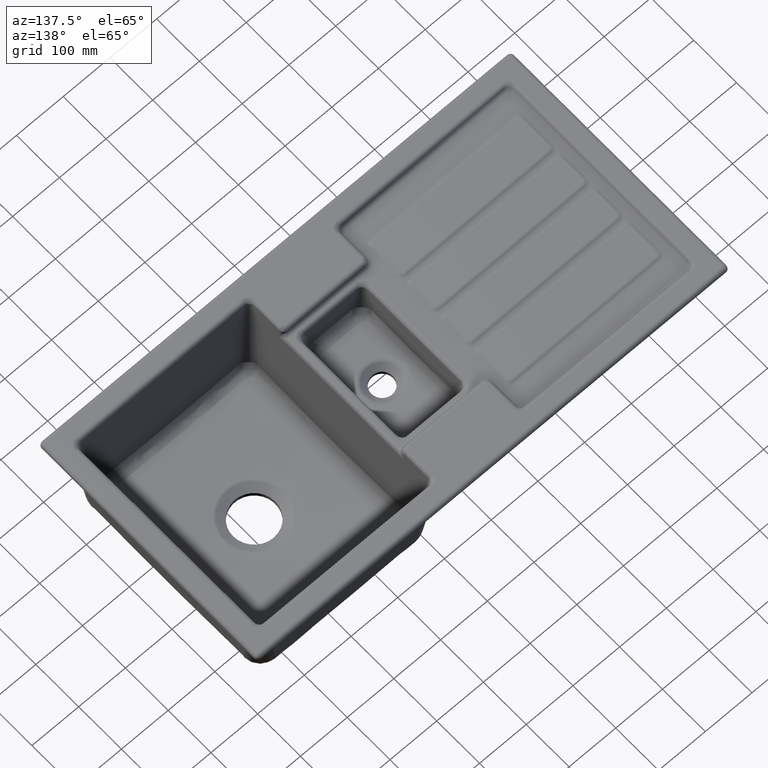
[diagram: clean part render]
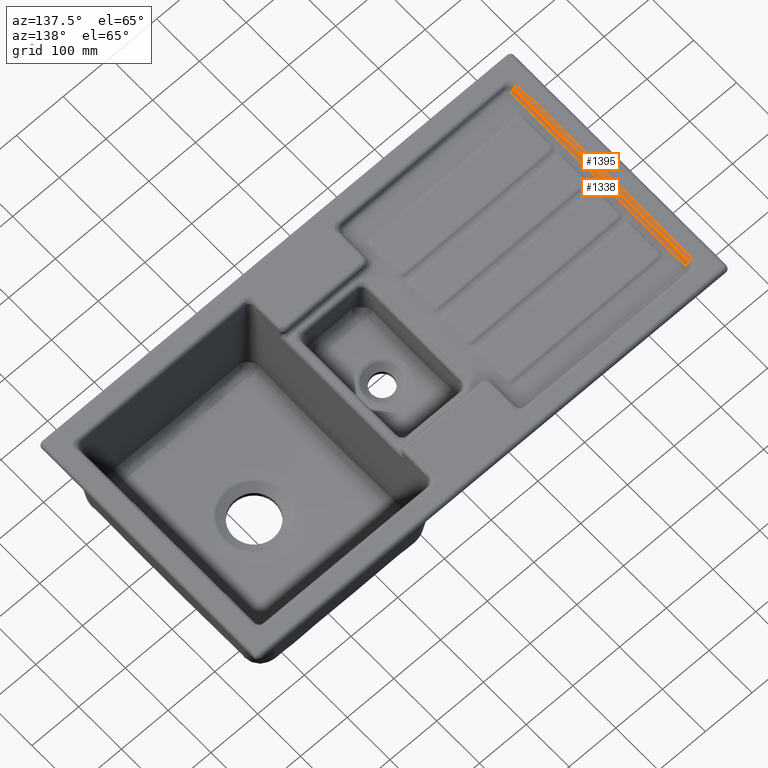
[diagram: same view with one multi-face feature highlighted, each face labeled with its STEP entity id]
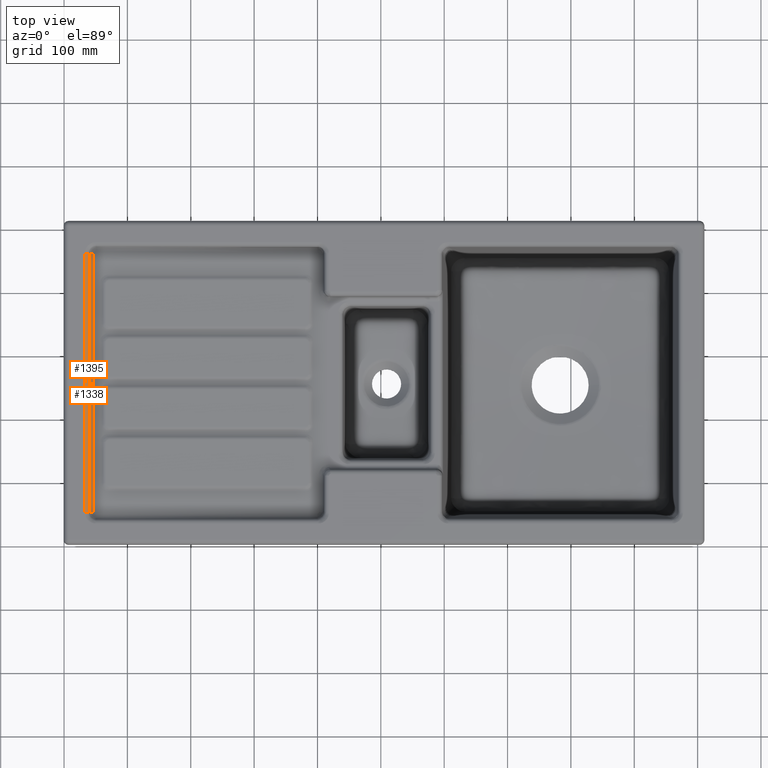
[diagram: same view with one multi-face feature highlighted, each face labeled with its STEP entity id]
A machine part, auxiliary view. The highlighted faces form ONE feature: a constant-radius fillet chain: 2 tangent blend faces with common blend radius 8 mm. The faces share edges in the B-rep.
A second angle (top view) of the same feature is appended — it is thin or edge-on in the first view.
Their STEP definitions:
[1] entity #1338 (Cylinder):
#563=FACE_OUTER_BOUND('',#1982,.T.);
#895=(
BOUNDED_CURVE()
B_SPLINE_CURVE(2,(#18164,#18165,#18166),.UNSPECIFIED.,.F.,.F.)
B_SPLINE_CURVE_WITH_KNOTS((3,3),(0.,1.),.UNSPECIFIED.)
CURVE()
GEOMETRIC_REPRESENTATION_ITEM()
RATIONAL_B_SPLINE_CURVE((1.,0.850855640641045,1.))
REPRESENTATION_ITEM('')
);
#1338=ADVANCED_FACE('',(#563),#1539,.F.);
#1539=CYLINDRICAL_SURFACE('',#6459,8.);
#1982=EDGE_LOOP('',(#3563,#3564,#3565,#3566));
#3563=ORIENTED_EDGE('',*,*,#5408,.F.);
#3564=ORIENTED_EDGE('',*,*,#5409,.T.);
#3565=ORIENTED_EDGE('',*,*,#5410,.T.);
#3566=ORIENTED_EDGE('',*,*,#5274,.F.);
#4449=VERTEX_POINT('',#15631);
#4450=VERTEX_POINT('',#15636);
#4521=VERTEX_POINT('',#18163);
#4522=VERTEX_POINT('',#18195);
#5274=EDGE_CURVE('',#4449,#4450,#6037,.T.);
#5408=EDGE_CURVE('',#4521,#4449,#895,.T.);
#5409=EDGE_CURVE('',#4521,#4522,#6151,.T.);
#5410=EDGE_CURVE('',#4522,#4450,#6152,.T.);
#6037=B_SPLINE_CURVE_WITH_KNOTS('',3,(#15632,#15633,#15634,#15635),
 .UNSPECIFIED.,.F.,.F.,(4,4),(0.,1.),.UNSPECIFIED.);
#6151=B_SPLINE_CURVE_WITH_KNOTS('',3,(#18191,#18192,#18193,#18194),
 .UNSPECIFIED.,.F.,.F.,(4,4),(0.,1.),.UNSPECIFIED.);
#6152=B_SPLINE_CURVE_WITH_KNOTS('',3,(#18196,#18197,#18198,#18199,#18200,
#18201),.UNSPECIFIED.,.F.,.F.,(4,2,4),(0.,0.5,1.),.UNSPECIFIED.);
#6459=AXIS2_PLACEMENT_3D('',#18202,#6834,#6835);
#6834=DIRECTION('',(-1.93643550806713E-16,1.,0.));
#6835=DIRECTION('',(1.,0.,0.));
#15631=CARTESIAN_POINT('',(46.9520135172106,459.399144826488,-9.15776325645886));
#15632=CARTESIAN_POINT('',(46.9520135172106,459.399144826488,-9.15776325645883));
#15633=CARTESIAN_POINT('',(46.9520135172106,323.133048275496,-9.15776325645883));
#15634=CARTESIAN_POINT('',(46.9520135172106,186.866951724504,-9.15776325645883));
#15635=CARTESIAN_POINT('',(46.9520135172106,50.6008551735119,-9.15776325645883));
#15636=CARTESIAN_POINT('',(46.9520135172107,50.6008551735119,-9.15776325645886));
#18163=CARTESIAN_POINT('',(39.9014313968267,459.399144826488,-4.57991119093864));
#18164=CARTESIAN_POINT('',(39.9014313968267,459.399144826488,-4.57991119093864));
#18165=CARTESIAN_POINT('',(42.0133208975027,459.399144826488,-9.04568864262136));
#18166=CARTESIAN_POINT('',(46.9520135172106,459.399144826488,-9.15776325645887));
#18191=CARTESIAN_POINT('',(39.9014313968267,459.399144826488,-4.57991119093862));
#18192=CARTESIAN_POINT('',(39.9014313968268,323.133048275496,-4.57991119093862));
#18193=CARTESIAN_POINT('',(39.9014313968268,186.866951724504,-4.57991119093862));
#18194=CARTESIAN_POINT('',(39.9014313968268,50.6008551735119,-4.57991119093862));
#18195=CARTESIAN_POINT('',(39.9014313968268,50.6008551735119,-4.57991119093864));
#18196=CARTESIAN_POINT('',(39.9014313968268,50.6008551735119,-4.57991119093865));
#18197=CARTESIAN_POINT('',(40.5320782416546,50.6008551735119,-5.91346981638048));
#18198=CARTESIAN_POINT('',(41.5397280307083,50.6008551735119,-7.06623185605915));
#18199=CARTESIAN_POINT('',(44.0142090632721,50.6008551735119,-8.67288048628544));
#18200=CARTESIAN_POINT('',(45.4772342178223,50.6008551735119,-9.12429583234445));
#18201=CARTESIAN_POINT('',(46.9520135172107,50.6008551735119,-9.15776325645888));
#18202=CARTESIAN_POINT('',(47.1335121857929,392.,-1.15982238187729));
[2] entity #1395 (Cylinder):
#620=FACE_OUTER_BOUND('',#2039,.T.);
#938=(
BOUNDED_CURVE()
B_SPLINE_CURVE(2,(#20072,#20073,#20074),.UNSPECIFIED.,.F.,.F.)
B_SPLINE_CURVE_WITH_KNOTS((3,3),(0.,1.),.UNSPECIFIED.)
CURVE()
GEOMETRIC_REPRESENTATION_ITEM()
RATIONAL_B_SPLINE_CURVE((1.,0.802395633807191,0.902043777651868))
REPRESENTATION_ITEM('')
);
#1395=ADVANCED_FACE('',(#620),#1560,.T.);
#1560=CYLINDRICAL_SURFACE('',#6484,8.);
#2039=EDGE_LOOP('',(#3800,#3801,#3802,#3803));
#3800=ORIENTED_EDGE('',*,*,#5519,.T.);
#3801=ORIENTED_EDGE('',*,*,#5409,.F.);
#3802=ORIENTED_EDGE('',*,*,#5517,.F.);
#3803=ORIENTED_EDGE('',*,*,#5520,.T.);
#4521=VERTEX_POINT('',#18163);
#4522=VERTEX_POINT('',#18195);
#4574=VERTEX_POINT('',#20075);
#4575=VERTEX_POINT('',#20122);
#5409=EDGE_CURVE('',#4521,#4522,#6151,.T.);
#5517=EDGE_CURVE('',#4574,#4521,#938,.T.);
#5519=EDGE_CURVE('',#4575,#4522,#6217,.T.);
#5520=EDGE_CURVE('',#4574,#4575,#6218,.T.);
#6151=B_SPLINE_CURVE_WITH_KNOTS('',3,(#18191,#18192,#18193,#18194),
 .UNSPECIFIED.,.F.,.F.,(4,4),(0.,1.),.UNSPECIFIED.);
#6217=B_SPLINE_CURVE_WITH_KNOTS('',3,(#20116,#20117,#20118,#20119,#20120,
#20121),.UNSPECIFIED.,.F.,.F.,(4,2,4),(0.,0.5,1.),.UNSPECIFIED.);
#6218=B_SPLINE_CURVE_WITH_KNOTS('',3,(#20123,#20124,#20125,#20126),
 .UNSPECIFIED.,.F.,.F.,(4,4),(0.,1.),.UNSPECIFIED.);
#6484=AXIS2_PLACEMENT_3D('',#20127,#6884,#6885);
#6884=DIRECTION('',(-1.93643550806713E-16,1.,0.));
#6885=DIRECTION('',(1.,0.,0.));
#18163=CARTESIAN_POINT('',(39.9014313968267,459.399144826488,-4.57991119093864));
#18191=CARTESIAN_POINT('',(39.9014313968267,459.399144826488,-4.57991119093862));
#18192=CARTESIAN_POINT('',(39.9014313968268,323.133048275496,-4.57991119093862));
#18193=CARTESIAN_POINT('',(39.9014313968268,186.866951724504,-4.57991119093862));
#18194=CARTESIAN_POINT('',(39.9014313968268,50.6008551735119,-4.57991119093862));
#18195=CARTESIAN_POINT('',(39.9014313968268,50.6008551735119,-4.57991119093864));
#20072=CARTESIAN_POINT('',(32.6693506078605,459.399144826488,0.));
#20073=CARTESIAN_POINT('',(37.7355674542499,459.399144826488,0.));
#20074=CARTESIAN_POINT('',(39.9014313968267,459.399144826488,-4.57991119093865));
#20075=CARTESIAN_POINT('',(32.6693506078605,459.399144826488,0.));
#20116=CARTESIAN_POINT('',(32.6693506078607,50.6008551735119,3.31400048847534E-30));
#20117=CARTESIAN_POINT('',(34.1747619731223,50.6008551735119,-5.06864515636973E-15));
#20118=CARTESIAN_POINT('',(35.6776634597957,50.6008551735119,-0.435853176759381));
#20119=CARTESIAN_POINT('',(38.2213285836381,50.6008551735119,-2.04669806450729));
#20120=CARTESIAN_POINT('',(39.2578513264062,50.6008551735119,-3.21900411416365));
#20121=CARTESIAN_POINT('',(39.9014313968268,50.6008551735119,-4.57991119093865));
#20122=CARTESIAN_POINT('',(32.6693506078607,50.6008551735119,0.));
#20123=CARTESIAN_POINT('',(32.6693506078606,459.399144826488,0.));
#20124=CARTESIAN_POINT('',(32.6693506078606,323.133048275496,0.));
#20125=CARTESIAN_POINT('',(32.6693506078606,186.866951724504,0.));
#20126=CARTESIAN_POINT('',(32.6693506078607,50.6008551735119,0.));
#20127=CARTESIAN_POINT('',(32.6693506078606,392.,-8.));